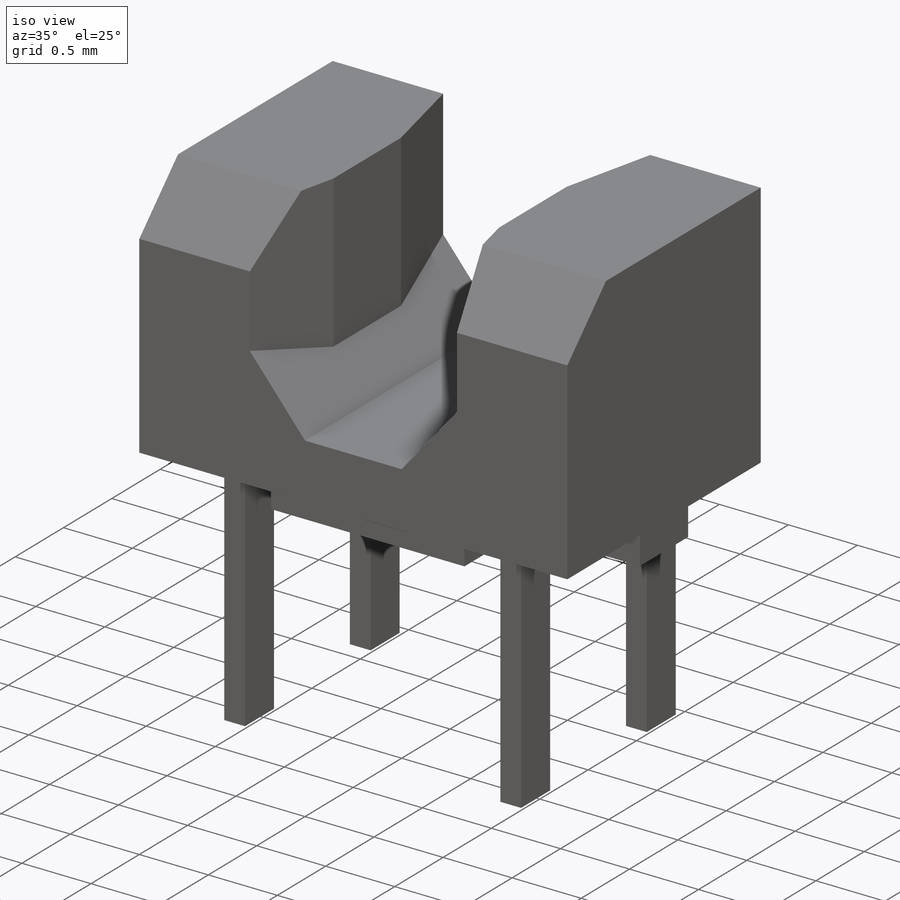
[diagram: iso view]
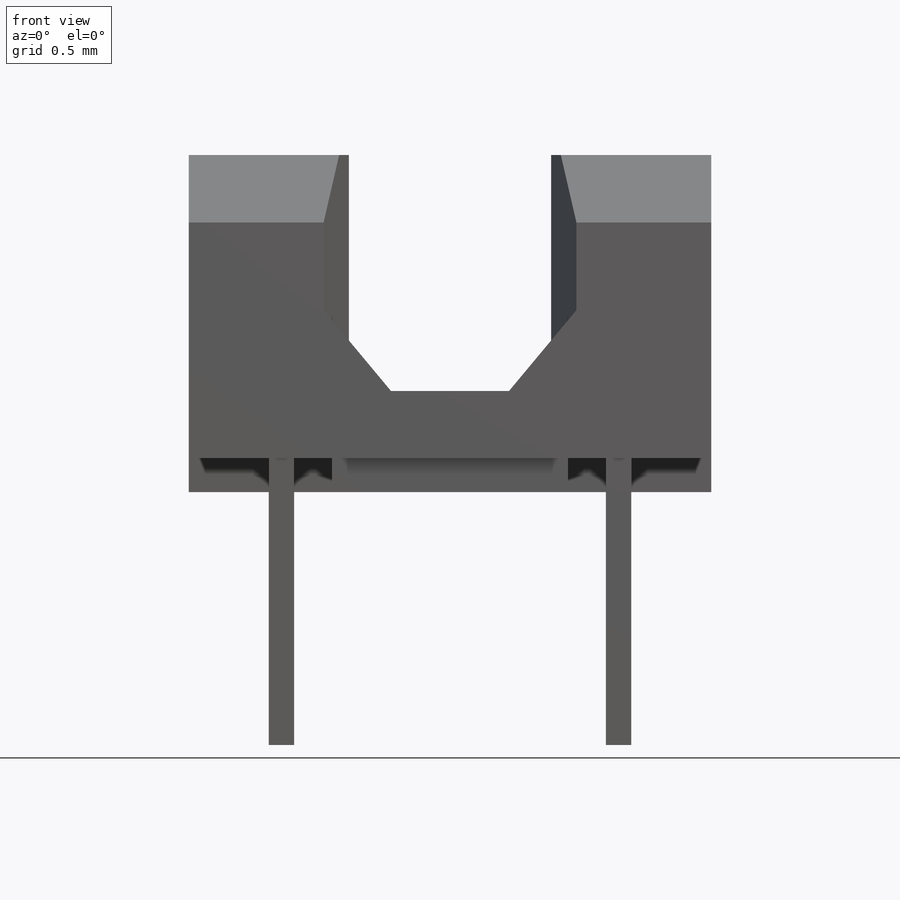
[diagram: front view]
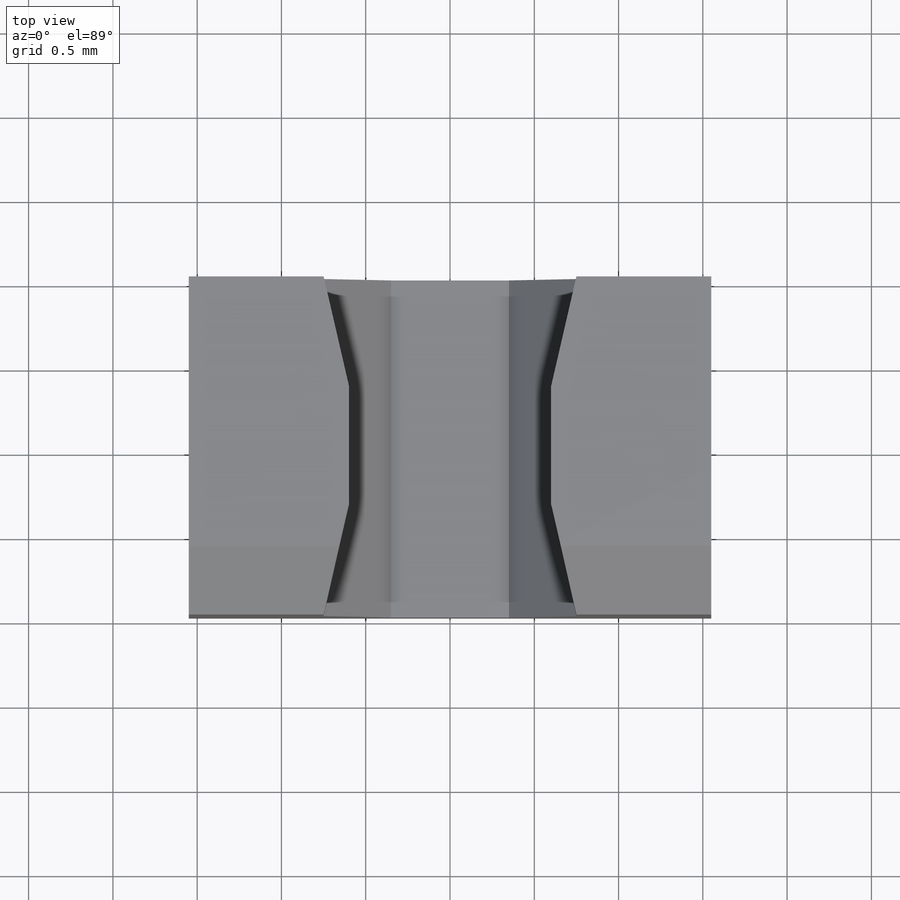
[diagram: top view]
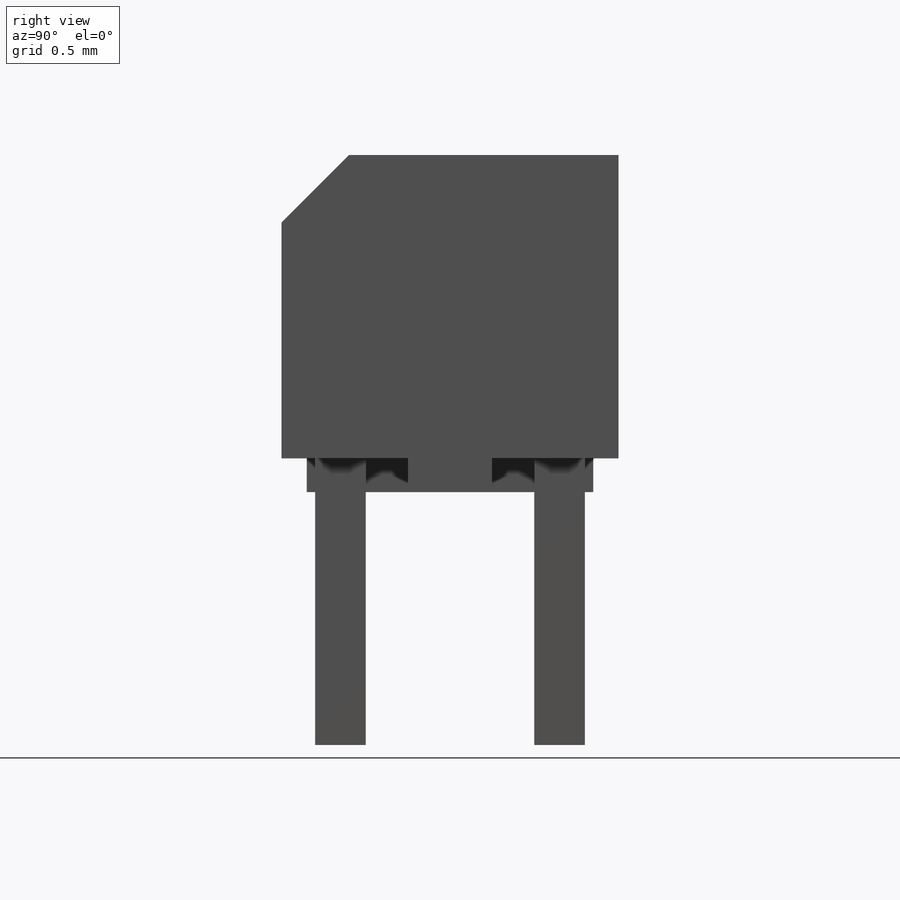
[diagram: right view]
SOLIDWORKS PART (.sldprt)
format: sldprt  version: not decoded by parser v0  size: 238,592 bytes
history: native  units: mm
features: sketch x5, extrude x3, mirror x3, cut_extrude x2, material x1, chamfer x1 (+16 scaffold rows collapsed)
feature tree (31):
  scaffold x16  (default folders/planes/origin — collapsed)
  material  "Material <not specified>"
  sketch  "Sketch1"  dims[D1=3.1mm D2=2.0mm D3=1.4mm D4=1.5mm D5=0.7mm D6=1.1mm D7=0.6mm]
  extrude  "Boss-Extrude1"  Depth=2mm
  sketch  "Sketch2"  dims[c1.D1=~0.938405mm c2.D1=90.0deg c3.D1=0.6mm c3.D2=0.7mm]
  extrude  "Boss-Extrude2"  [1 undecoded]
  mirror  "Mirror1"
  chamfer  "Chamfer1"  Distance=0.4mm Angle=45deg
  sketch  "Sketch3"  dims[D1=1.7mm D2=1.4mm D3=0.5mm]
  cut_extrude  "Cut-Extrude1"  Depth=0.2mm
  sketch  "Sketch4"  dims[D1=0.35mm D2=0.5mm D3=0.65mm D4=0.3mm]
  cut_extrude  "Cut-Extrude2"  Depth=0.2mm
  sketch  "Sketch5"  dims[D1=0.65mm D2=1.0mm D3=0.15mm D4=0.3mm]
  extrude  "Boss-Extrude3"  Depth=1.5mm
  mirror  "Mirror2"
  mirror  "Mirror3"
decode coverage: 10 of 14 modeling features carry decoded parameters
note: ~ marks probable driven/reference dimensions
note: 1 parameter value undecoded
note: suppression state not decoded; provenance and decode notes live in map.json
